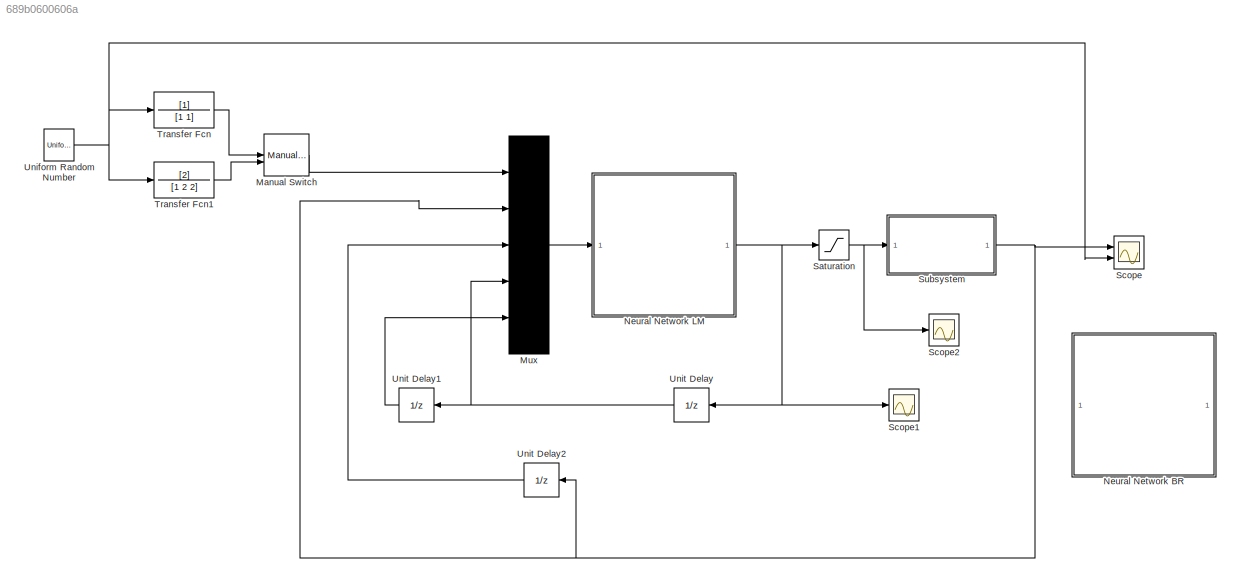
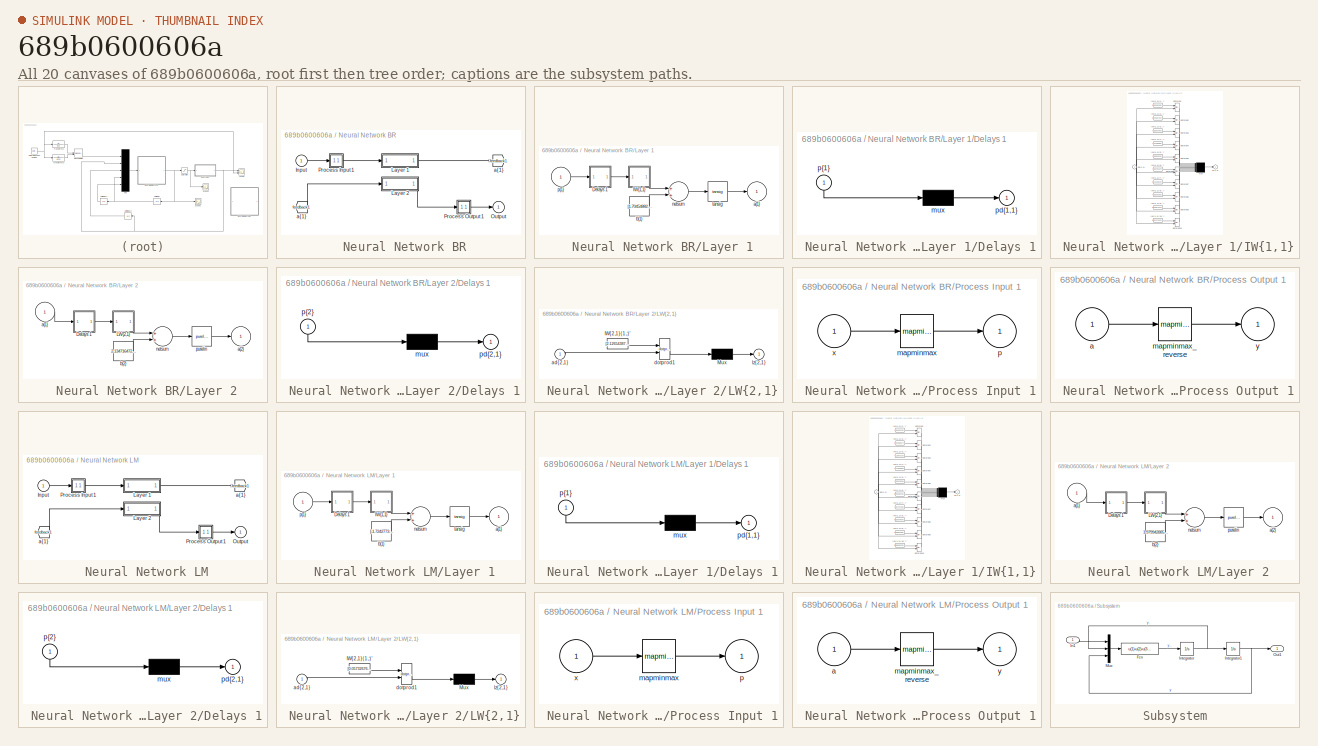
[diagram: thumbnail index - all 20 canvases of the model, root first then tree order]
MODEL slx_689b0600606a
KIND model
CONFIG AbsTol = auto
CONFIG FixedStep = auto
CONFIG MaxStep = auto
CONFIG MinStep = auto
CONFIG RelTol = 1e-3
CONFIG SampleTimeConstraint = Unconstrained
CONFIG Solver = VariableStepAuto
CONFIG SolverMode = Auto
CONFIG SolverName = VariableStepAuto
CONFIG StartTime = 0.0
CONFIG StopTime = 200
BLOCK [SubSystem]  Neural Network BR
  Ports = [1, 1]
  RequestExecContextInheritance = off
  Variant = off
BLOCK [From]  Neural Network BR/ a{1} 
  GotoTag = feedback1
BLOCK [Inport]  Neural Network BR/Input
  IconDisplay = Port number
  PortDimensions = 5
  SampleTime = 0.2
BLOCK [SubSystem]  Neural Network BR/Layer 1
  Ports = [1, 1]
  RequestExecContextInheritance = off
  Variant = off
BLOCK [SubSystem]  Neural Network BR/Layer 1/Delays 1
  Ports = [1, 1]
  RequestExecContextInheritance = off
  Variant = off
BLOCK [Mux]  Neural Network BR/Layer 1/Delays 1/mux
  Inputs = 1
  Ports = [1, 1]
BLOCK [Outport]  Neural Network BR/Layer 1/Delays 1/pd{1,1}
  IconDisplay = Port number
BLOCK [Inport]  Neural Network BR/Layer 1/Delays 1/p{1}
  IconDisplay = Port number
  PortDimensions = 5
  SampleTime = 0.2
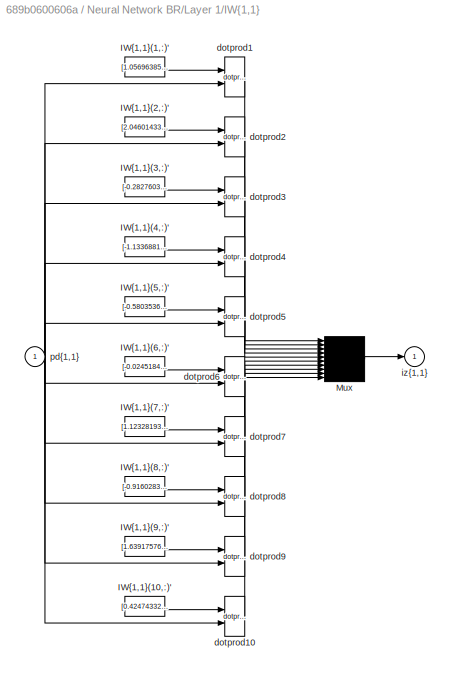
BLOCK [SubSystem]  Neural Network BR/Layer 1/IW{1,1}
  Ports = [1, 1]
  RequestExecContextInheritance = off
  Variant = off
BLOCK [Constant]  Neural Network BR/Layer 1/IW{1,1}/IW{1,1}(1,:)'
  Value = [1.056963858954415;-1.0900926945707046;0.24927751019944705;0.098959723356605342;0.060669770493302001]
BLOCK [Constant]  Neural Network BR/Layer 1/IW{1,1}/IW{1,1}(10,:)'
  Value = [0.42474332894244748;-0.7817028364131875;-0.30183175306917126;-0.0020156599386555599;-0.04446406066967025]
BLOCK [Constant]  Neural Network BR/Layer 1/IW{1,1}/IW{1,1}(2,:)'
  Value = [2.0460143369307637;-2.5356987014266377;1.0447400003619411;-0.16100591945050774;-0.033213769998218144]
BLOCK [Constant]  Neural Network BR/Layer 1/IW{1,1}/IW{1,1}(3,:)'
  Value = [-0.28276033296813868;0.3970490366481611;0.39562273473424403;-0.17442308986767127;-0.059553217371278229]
BLOCK [Constant]  Neural Network BR/Layer 1/IW{1,1}/IW{1,1}(4,:)'
  Value = [-1.1336881780299397;0.85956874940426686;-0.96571778975182532;0.059576964720466336;-0.0056684187506604684]
BLOCK [Constant]  Neural Network BR/Layer 1/IW{1,1}/IW{1,1}(5,:)'
  Value = [-0.58035363580542543;-0.14340273409488374;-0.97495219186498006;0.0064210316041324123;-0.02641483959853862]
BLOCK [Constant]  Neural Network BR/Layer 1/IW{1,1}/IW{1,1}(6,:)'
  Value = [-0.024518425042668188;-0.66988646387706796;0.75956162904179358;0.11752498667584305;0.067498394867176612]
BLOCK [Constant]  Neural Network BR/Layer 1/IW{1,1}/IW{1,1}(7,:)'
  Value = [1.1232819358145447;-3.0285530483114131;1.5370665195340782;-0.099874452682005066;0.01322895500818745]
BLOCK [Constant]  Neural Network BR/Layer 1/IW{1,1}/IW{1,1}(8,:)'
  Value = [-0.91602833625770685;1.0210131008949146;-0.36605489254354684;0.14689116582434847;0.10656023771599385]
BLOCK [Constant]  Neural Network BR/Layer 1/IW{1,1}/IW{1,1}(9,:)'
  Value = [1.6391757663422919;-0.71323444379412915;0.68566147272687827;-0.15178624253823839;-0.055985679889855963]
BLOCK [Mux]  Neural Network BR/Layer 1/IW{1,1}/Mux
  Inputs = 10
  Ports = [10, 1]
BLOCK [Reference]  Neural Network BR/Layer 1/IW{1,1}/dotprod1  REF=neural/Weight Functions/dotprod
  Ports = [2, 1]
  SourceBlock = neural/Weight Functions/dotprod
  SourceType = DOTPROD
BLOCK [Reference]  Neural Network BR/Layer 1/IW{1,1}/dotprod10  REF=neural/Weight Functions/dotprod
  Ports = [2, 1]
  SourceBlock = neural/Weight Functions/dotprod
  SourceType = DOTPROD
BLOCK [Reference]  Neural Network BR/Layer 1/IW{1,1}/dotprod2  REF=neural/Weight Functions/dotprod
  Ports = [2, 1]
  SourceBlock = neural/Weight Functions/dotprod
  SourceType = DOTPROD
BLOCK [Reference]  Neural Network BR/Layer 1/IW{1,1}/dotprod3  REF=neural/Weight Functions/dotprod
  Ports = [2, 1]
  SourceBlock = neural/Weight Functions/dotprod
  SourceType = DOTPROD
BLOCK [Reference]  Neural Network BR/Layer 1/IW{1,1}/dotprod4  REF=neural/Weight Functions/dotprod
  Ports = [2, 1]
  SourceBlock = neural/Weight Functions/dotprod
  SourceType = DOTPROD
BLOCK [Reference]  Neural Network BR/Layer 1/IW{1,1}/dotprod5  REF=neural/Weight Functions/dotprod
  Ports = [2, 1]
  SourceBlock = neural/Weight Functions/dotprod
  SourceType = DOTPROD
BLOCK [Reference]  Neural Network BR/Layer 1/IW{1,1}/dotprod6  REF=neural/Weight Functions/dotprod
  Ports = [2, 1]
  SourceBlock = neural/Weight Functions/dotprod
  SourceType = DOTPROD
BLOCK [Reference]  Neural Network BR/Layer 1/IW{1,1}/dotprod7  REF=neural/Weight Functions/dotprod
  Ports = [2, 1]
  SourceBlock = neural/Weight Functions/dotprod
  SourceType = DOTPROD
BLOCK [Reference]  Neural Network BR/Layer 1/IW{1,1}/dotprod8  REF=neural/Weight Functions/dotprod
  Ports = [2, 1]
  SourceBlock = neural/Weight Functions/dotprod
  SourceType = DOTPROD
BLOCK [Reference]  Neural Network BR/Layer 1/IW{1,1}/dotprod9  REF=neural/Weight Functions/dotprod
  Ports = [2, 1]
  SourceBlock = neural/Weight Functions/dotprod
  SourceType = DOTPROD
BLOCK [Outport]  Neural Network BR/Layer 1/IW{1,1}/iz{1,1}
  IconDisplay = Port number
BLOCK [Inport]  Neural Network BR/Layer 1/IW{1,1}/pd{1,1}
  IconDisplay = Port number
  PortDimensions = 5
  SampleTime = 0.2
BLOCK [Outport]  Neural Network BR/Layer 1/a{1}
  IconDisplay = Port number
  InitialOutput = [0;0;0;0;0;0;0;0;0;0]
BLOCK [Constant]  Neural Network BR/Layer 1/b{1}
  Value = [1.7045488253133885;-0.012578466137472339;0.37025748250943907;0.89800683459673192;2.1867448396153644;0.36750046034840117;-0.46690919082776078;-0.98966717327566744;2.3768809340586188;-0.036632793892404487]
BLOCK [Sum]  Neural Network BR/Layer 1/netsum
  Inputs = 2
  Ports = [2, 1]
BLOCK [Inport]  Neural Network BR/Layer 1/p{1}
  IconDisplay = Port number
  PortDimensions = 5
  SampleTime = 0.2
BLOCK [Reference]  Neural Network BR/Layer 1/tansig  REF=neural/Transfer Functions/tansig
  Ports = [1, 1]
  SourceBlock = neural/Transfer Functions/tansig
  SourceType = TANSIG
BLOCK [SubSystem]  Neural Network BR/Layer 2
  Ports = [1, 1]
  RequestExecContextInheritance = off
  Variant = off
BLOCK [SubSystem]  Neural Network BR/Layer 2/Delays 1
  Ports = [1, 1]
  RequestExecContextInheritance = off
  Variant = off
BLOCK [Mux]  Neural Network BR/Layer 2/Delays 1/mux
  Inputs = 1
  Ports = [1, 1]
BLOCK [Outport]  Neural Network BR/Layer 2/Delays 1/pd{2,1}
  IconDisplay = Port number
BLOCK [Inport]  Neural Network BR/Layer 2/Delays 1/p{2}
  IconDisplay = Port number
  PortDimensions = 10
  SampleTime = 0.2
BLOCK [SubSystem]  Neural Network BR/Layer 2/LW{2,1}
  Ports = [1, 1]
  RequestExecContextInheritance = off
  Variant = off
BLOCK [Constant]  Neural Network BR/Layer 2/LW{2,1}/IW{2,1}(1,:)'
  Value = [2.1265438706580051;3.7009592898865966;-1.3459269555205484;-3.6565779066977497;-4.4205733104627472;1.5027033389764313;5.9477978315276596;-1.9885744465830533;2.3504455734726384;1.6412971123999656]
BLOCK [Mux]  Neural Network BR/Layer 2/LW{2,1}/Mux
  Inputs = 1
  Ports = [1, 1]
BLOCK [Inport]  Neural Network BR/Layer 2/LW{2,1}/ad{2,1}
  IconDisplay = Port number
  PortDimensions = 10
  SampleTime = 0.2
BLOCK [Reference]  Neural Network BR/Layer 2/LW{2,1}/dotprod1  REF=neural/Weight Functions/dotprod
  Ports = [2, 1]
  SourceBlock = neural/Weight Functions/dotprod
  SourceType = DOTPROD
BLOCK [Outport]  Neural Network BR/Layer 2/LW{2,1}/lz{2,1}
  IconDisplay = Port number
BLOCK [Inport]  Neural Network BR/Layer 2/a{1} 
  IconDisplay = Port number
  PortDimensions = 10
  SampleTime = 0.2
BLOCK [Outport]  Neural Network BR/Layer 2/a{2}
  IconDisplay = Port number
  InitialOutput = 0
BLOCK [Constant]  Neural Network BR/Layer 2/b{2}
  Value = 2.1347164720292917
BLOCK [Sum]  Neural Network BR/Layer 2/netsum
  Inputs = 2
  Ports = [2, 1]
BLOCK [Reference]  Neural Network BR/Layer 2/purelin  REF=neural/Transfer Functions/purelin
  Ports = [1, 1]
  SourceBlock = neural/Transfer Functions/purelin
  SourceType = PURELIN
BLOCK [Outport]  Neural Network BR/Output
  IconDisplay = Port number
  InitialOutput = 0
BLOCK [SubSystem]  Neural Network BR/Process Input 1
  Ports = [1, 1]
  RequestExecContextInheritance = off
  Variant = off
BLOCK [Reference]  Neural Network BR/Process Input 1/mapminmax  REF=neural/Processing Functions/mapminmax
  Ports = [1, 1]
  SourceBlock = neural/Processing Functions/mapminmax
  SourceType = MAPMINMAX Preprocess
BLOCK [Outport]  Neural Network BR/Process Input 1/p
  IconDisplay = Port number
  PortDimensions = 5
  SampleTime = 0.2
BLOCK [Inport]  Neural Network BR/Process Input 1/x
  IconDisplay = Port number
  PortDimensions = 5
  SampleTime = 0.2
BLOCK [SubSystem]  Neural Network BR/Process Output 1
  Ports = [1, 1]
  RequestExecContextInheritance = off
  Variant = off
BLOCK [Inport]  Neural Network BR/Process Output 1/a
  IconDisplay = Port number
  PortDimensions = 1
  SampleTime = 0.2
BLOCK [Reference]  Neural Network BR/Process Output 1/mapminmax_reverse  REF=neural/Processing Functions/mapminmax_reverse
  Ports = [1, 1]
  SourceBlock = neural/Processing Functions/mapminmax_reverse
  SourceType = MAPMINMAX Reverse Process
BLOCK [Outport]  Neural Network BR/Process Output 1/y
  IconDisplay = Port number
  PortDimensions = 1
  SampleTime = 0.2
BLOCK [Goto]  Neural Network BR/a{1}
  GotoTag = feedback1
BLOCK [SubSystem]  Neural Network LM
  Ports = [1, 1]
  RequestExecContextInheritance = off
  Variant = off
BLOCK [From]  Neural Network LM/ a{1} 
  GotoTag = feedback1
BLOCK [Inport]  Neural Network LM/Input
  IconDisplay = Port number
  PortDimensions = 5
  SampleTime = 0.2
BLOCK [SubSystem]  Neural Network LM/Layer 1
  Ports = [1, 1]
  RequestExecContextInheritance = off
  Variant = off
BLOCK [SubSystem]  Neural Network LM/Layer 1/Delays 1
  Ports = [1, 1]
  RequestExecContextInheritance = off
  Variant = off
BLOCK [Mux]  Neural Network LM/Layer 1/Delays 1/mux
  Inputs = 1
  Ports = [1, 1]
BLOCK [Outport]  Neural Network LM/Layer 1/Delays 1/pd{1,1}
  IconDisplay = Port number
BLOCK [Inport]  Neural Network LM/Layer 1/Delays 1/p{1}
  IconDisplay = Port number
  PortDimensions = 5
  SampleTime = 0.2
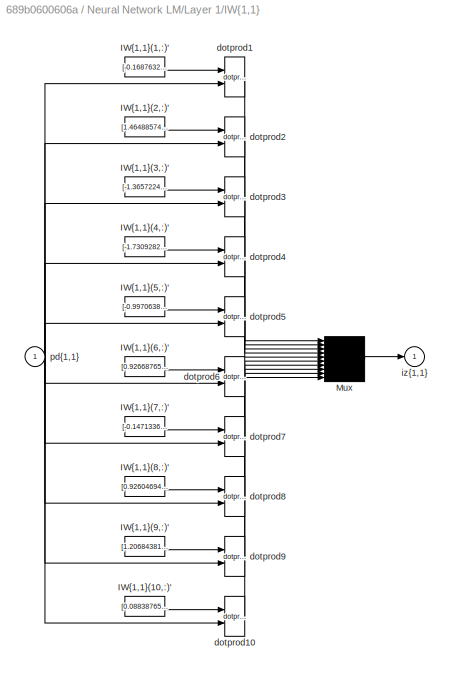
BLOCK [SubSystem]  Neural Network LM/Layer 1/IW{1,1}
  Ports = [1, 1]
  RequestExecContextInheritance = off
  Variant = off
BLOCK [Constant]  Neural Network LM/Layer 1/IW{1,1}/IW{1,1}(1,:)'
  Value = [-0.16876329825811845;-2.1066320802929721;0.76282620320520456;1.3440833319178789;-1.0713310439270929]
BLOCK [Constant]  Neural Network LM/Layer 1/IW{1,1}/IW{1,1}(10,:)'
  Value = [0.088387657274529061;-0.19881329711021387;-0.94431130025925902;0.0047264367556099883;0.63190148272907753]
BLOCK [Constant]  Neural Network LM/Layer 1/IW{1,1}/IW{1,1}(2,:)'
  Value = [1.4648857494262071;-3.4610504649940745;1.7901936105488077;-0.15491806827842539;-0.0021151620640995341]
BLOCK [Constant]  Neural Network LM/Layer 1/IW{1,1}/IW{1,1}(3,:)'
  Value = [-1.3657224552055787;0.80688471402681139;-1.1382619127288134;0.082185478294469691;0.0067311801381174643]
BLOCK [Constant]  Neural Network LM/Layer 1/IW{1,1}/IW{1,1}(4,:)'
  Value = [-1.7309282076627388;2.4581267912494709;-1.2728291835101484;0.091121337007039602;-0.011287021407722793]
BLOCK [Constant]  Neural Network LM/Layer 1/IW{1,1}/IW{1,1}(5,:)'
  Value = [-0.99706386615914622;1.0998584069326154;-0.5503400136437423;-0.13938545582461678;0.015826622187323079]
BLOCK [Constant]  Neural Network LM/Layer 1/IW{1,1}/IW{1,1}(6,:)'
  Value = [0.92668765938641362;-1.4516495032763881;0.030779208736348387;0.092870861472902341;-0.024781990519559233]
BLOCK [Constant]  Neural Network LM/Layer 1/IW{1,1}/IW{1,1}(7,:)'
  Value = [-0.1471336843808155;1.8686114703312633;-0.33963995218011439;0.12650200396603051;0.013439767515916721]
BLOCK [Constant]  Neural Network LM/Layer 1/IW{1,1}/IW{1,1}(8,:)'
  Value = [0.92604694413803668;0.54483653298121437;1.1645858737554569;-0.04621334007481584;-0.022231823992957683]
BLOCK [Constant]  Neural Network LM/Layer 1/IW{1,1}/IW{1,1}(9,:)'
  Value = [1.2068438139796636;0.98539130961691945;1.2704892335215878;-0.4654771766340528;-0.80719686076170449]
BLOCK [Mux]  Neural Network LM/Layer 1/IW{1,1}/Mux
  Inputs = 10
  Ports = [10, 1]
BLOCK [Reference]  Neural Network LM/Layer 1/IW{1,1}/dotprod1  REF=neural/Weight Functions/dotprod
  Ports = [2, 1]
  SourceBlock = neural/Weight Functions/dotprod
  SourceType = DOTPROD
BLOCK [Reference]  Neural Network LM/Layer 1/IW{1,1}/dotprod10  REF=neural/Weight Functions/dotprod
  Ports = [2, 1]
  SourceBlock = neural/Weight Functions/dotprod
  SourceType = DOTPROD
BLOCK [Reference]  Neural Network LM/Layer 1/IW{1,1}/dotprod2  REF=neural/Weight Functions/dotprod
  Ports = [2, 1]
  SourceBlock = neural/Weight Functions/dotprod
  SourceType = DOTPROD
BLOCK [Reference]  Neural Network LM/Layer 1/IW{1,1}/dotprod3  REF=neural/Weight Functions/dotprod
  Ports = [2, 1]
  SourceBlock = neural/Weight Functions/dotprod
  SourceType = DOTPROD
BLOCK [Reference]  Neural Network LM/Layer 1/IW{1,1}/dotprod4  REF=neural/Weight Functions/dotprod
  Ports = [2, 1]
  SourceBlock = neural/Weight Functions/dotprod
  SourceType = DOTPROD
BLOCK [Reference]  Neural Network LM/Layer 1/IW{1,1}/dotprod5  REF=neural/Weight Functions/dotprod
  Ports = [2, 1]
  SourceBlock = neural/Weight Functions/dotprod
  SourceType = DOTPROD
BLOCK [Reference]  Neural Network LM/Layer 1/IW{1,1}/dotprod6  REF=neural/Weight Functions/dotprod
  Ports = [2, 1]
  SourceBlock = neural/Weight Functions/dotprod
  SourceType = DOTPROD
BLOCK [Reference]  Neural Network LM/Layer 1/IW{1,1}/dotprod7  REF=neural/Weight Functions/dotprod
  Ports = [2, 1]
  SourceBlock = neural/Weight Functions/dotprod
  SourceType = DOTPROD
BLOCK [Reference]  Neural Network LM/Layer 1/IW{1,1}/dotprod8  REF=neural/Weight Functions/dotprod
  Ports = [2, 1]
  SourceBlock = neural/Weight Functions/dotprod
  SourceType = DOTPROD
BLOCK [Reference]  Neural Network LM/Layer 1/IW{1,1}/dotprod9  REF=neural/Weight Functions/dotprod
  Ports = [2, 1]
  SourceBlock = neural/Weight Functions/dotprod
  SourceType = DOTPROD
BLOCK [Outport]  Neural Network LM/Layer 1/IW{1,1}/iz{1,1}
  IconDisplay = Port number
BLOCK [Inport]  Neural Network LM/Layer 1/IW{1,1}/pd{1,1}
  IconDisplay = Port number
  PortDimensions = 5
  SampleTime = 0.2
BLOCK [Outport]  Neural Network LM/Layer 1/a{1}
  IconDisplay = Port number
  InitialOutput = [0;0;0;0;0;0;0;0;0;0]
BLOCK [Constant]  Neural Network LM/Layer 1/b{1}
  Value = [-1.7242773230528354;-0.27916447362412417;1.5025619503269712;-0.087083833794172422;-0.91874972241712904;-0.14396519922694817;0.83724644871562937;-3.0805576946821662;4.4586036942700433;-1.546640451809655]
BLOCK [Sum]  Neural Network LM/Layer 1/netsum
  Inputs = 2
  Ports = [2, 1]
BLOCK [Inport]  Neural Network LM/Layer 1/p{1}
  IconDisplay = Port number
  PortDimensions = 5
  SampleTime = 0.2
BLOCK [Reference]  Neural Network LM/Layer 1/tansig  REF=neural/Transfer Functions/tansig
  Ports = [1, 1]
  SourceBlock = neural/Transfer Functions/tansig
  SourceType = TANSIG
BLOCK [SubSystem]  Neural Network LM/Layer 2
  Ports = [1, 1]
  RequestExecContextInheritance = off
  Variant = off
BLOCK [SubSystem]  Neural Network LM/Layer 2/Delays 1
  Ports = [1, 1]
  RequestExecContextInheritance = off
  Variant = off
BLOCK [Mux]  Neural Network LM/Layer 2/Delays 1/mux
  Inputs = 1
  Ports = [1, 1]
BLOCK [Outport]  Neural Network LM/Layer 2/Delays 1/pd{2,1}
  IconDisplay = Port number
BLOCK [Inport]  Neural Network LM/Layer 2/Delays 1/p{2}
  IconDisplay = Port number
  PortDimensions = 10
  SampleTime = 0.2
BLOCK [SubSystem]  Neural Network LM/Layer 2/LW{2,1}
  Ports = [1, 1]
  RequestExecContextInheritance = off
  Variant = off
BLOCK [Constant]  Neural Network LM/Layer 2/LW{2,1}/IW{2,1}(1,:)'
  Value = [0.057326763330341118;3.4207498038037598;-3.2223651203640378;-5.5734047705004803;-0.8953401663093179;1.7720780408218892;-1.3116420911533617;2.1043530497351703;2.8401933777224104;0.43457423931429773]
BLOCK [Mux]  Neural Network LM/Layer 2/LW{2,1}/Mux
  Inputs = 1
  Ports = [1, 1]
BLOCK [Inport]  Neural Network LM/Layer 2/LW{2,1}/ad{2,1}
  IconDisplay = Port number
  PortDimensions = 10
  SampleTime = 0.2
BLOCK [Reference]  Neural Network LM/Layer 2/LW{2,1}/dotprod1  REF=neural/Weight Functions/dotprod
  Ports = [2, 1]
  SourceBlock = neural/Weight Functions/dotprod
  SourceType = DOTPROD
BLOCK [Outport]  Neural Network LM/Layer 2/LW{2,1}/lz{2,1}
  IconDisplay = Port number
BLOCK [Inport]  Neural Network LM/Layer 2/a{1} 
  IconDisplay = Port number
  PortDimensions = 10
  SampleTime = 0.2
BLOCK [Outport]  Neural Network LM/Layer 2/a{2}
  IconDisplay = Port number
  InitialOutput = 0
BLOCK [Constant]  Neural Network LM/Layer 2/b{2}
  Value = 1.9799428859623676
BLOCK [Sum]  Neural Network LM/Layer 2/netsum
  Inputs = 2
  Ports = [2, 1]
BLOCK [Reference]  Neural Network LM/Layer 2/purelin  REF=neural/Transfer Functions/purelin
  Ports = [1, 1]
  SourceBlock = neural/Transfer Functions/purelin
  SourceType = PURELIN
BLOCK [Outport]  Neural Network LM/Output
  IconDisplay = Port number
  InitialOutput = 0
BLOCK [SubSystem]  Neural Network LM/Process Input 1
  Ports = [1, 1]
  RequestExecContextInheritance = off
  Variant = off
BLOCK [Reference]  Neural Network LM/Process Input 1/mapminmax  REF=neural/Processing Functions/mapminmax
  Ports = [1, 1]
  SourceBlock = neural/Processing Functions/mapminmax
  SourceType = MAPMINMAX Preprocess
BLOCK [Outport]  Neural Network LM/Process Input 1/p
  IconDisplay = Port number
  PortDimensions = 5
  SampleTime = 0.2
BLOCK [Inport]  Neural Network LM/Process Input 1/x
  IconDisplay = Port number
  PortDimensions = 5
  SampleTime = 0.2
BLOCK [SubSystem]  Neural Network LM/Process Output 1
  Ports = [1, 1]
  RequestExecContextInheritance = off
  Variant = off
BLOCK [Inport]  Neural Network LM/Process Output 1/a
  IconDisplay = Port number
  PortDimensions = 1
  SampleTime = 0.2
BLOCK [Reference]  Neural Network LM/Process Output 1/mapminmax_reverse  REF=neural/Processing Functions/mapminmax_reverse
  Ports = [1, 1]
  SourceBlock = neural/Processing Functions/mapminmax_reverse
  SourceType = MAPMINMAX Reverse Process
BLOCK [Outport]  Neural Network LM/Process Output 1/y
  IconDisplay = Port number
  PortDimensions = 1
  SampleTime = 0.2
BLOCK [Goto]  Neural Network LM/a{1}
  GotoTag = feedback1
BLOCK [ManualSwitch] Manual Switch
  CurrentSetting = 0
BLOCK [Mux] Mux
  DisplayOption = bar
  Inputs = 5
  Ports = [5, 1]
BLOCK [Saturate] Saturation
  InputPortMap = u0
  LowerLimit = 0
  Ports = [1, 1]
  UpperLimit = 10
BLOCK [Scope] Scope
  NumInputPorts = 2
  Ports = [2]
  ScopeSpecificationString = Simulink.scopes.TimeScopeBlockCfg('CurrentConfiguration', extmgr.ConfigurationSet(extmgr.Configuration('Core','General UI',true),extmgr.Configuration('Core','Source UI',true),extmgr.Configuration('Sources','WiredSimulink',true),extmgr.Configuration('Visuals','Time Domain',true,'SerializedDisplays',{struct('MinYLimReal','-0.28314','MaxYLimReal','2.133','YLabelReal','','MinYLimMag','0.00000','MaxYLi...<+1398ch>
BLOCK [Scope] Scope1
  Ports = [1]
  ScopeSpecificationString = C++SS(StrPVP('SaveName','ScopeData1'))
BLOCK [Scope] Scope2
  Ports = [1]
  ScopeSpecificationString = C++SS(StrPVP('SaveName','ScopeData2'))
BLOCK [SubSystem] Subsystem
  Ports = [1, 1]
  RequestExecContextInheritance = off
  Variant = off
BLOCK [Fcn] Subsystem/Fcn
  Expr = u(1)-u(2)-u(3)^3
BLOCK [Inport] Subsystem/In1
  IconDisplay = Port number
BLOCK [Integrator] Subsystem/Integrator
  Ports = [1, 1]
BLOCK [Integrator] Subsystem/Integrator1
  Ports = [1, 1]
BLOCK [Mux] Subsystem/Mux
  DisplayOption = bar
  Inputs = 3
  Ports = [3, 1]
BLOCK [Outport] Subsystem/Out1
  IconDisplay = Port number
BLOCK [TransferFcn] Transfer Fcn
  Denominator = [1 1]
BLOCK [TransferFcn] Transfer Fcn1
  Denominator = [1 2 2]
  Numerator = [2]
BLOCK [UniformRandomNumber] Uniform Random Number
  Maximum = 2
  Minimum = 0
  SampleTime = 10
BLOCK [UnitDelay] Unit Delay
  InputProcessing = Elements as channels (sample based)
  SampleTime = 0.2
BLOCK [UnitDelay] Unit Delay1
  InputProcessing = Elements as channels (sample based)
  SampleTime = 0.2
BLOCK [UnitDelay] Unit Delay2
  InputProcessing = Elements as channels (sample based)
  SampleTime = 0.2
LINE  Neural Network BR/ a{1} :1 ->  Neural Network BR/Layer 2:1
LINE  Neural Network BR/Input:1 ->  Neural Network BR/Process Input 1:1
LINE  Neural Network BR/Layer 1/Delays 1/mux:1 ->  Neural Network BR/Layer 1/Delays 1/pd{1,1}:1
LINE  Neural Network BR/Layer 1/Delays 1/p{1}:1 ->  Neural Network BR/Layer 1/Delays 1/mux:1
LINE  Neural Network BR/Layer 1/Delays 1:1 ->  Neural Network BR/Layer 1/IW{1,1}:1
LINE  Neural Network BR/Layer 1/IW{1,1}/IW{1,1}(1,:)':1 ->  Neural Network BR/Layer 1/IW{1,1}/dotprod1:1
LINE  Neural Network BR/Layer 1/IW{1,1}/IW{1,1}(10,:)':1 ->  Neural Network BR/Layer 1/IW{1,1}/dotprod10:1
LINE  Neural Network BR/Layer 1/IW{1,1}/IW{1,1}(2,:)':1 ->  Neural Network BR/Layer 1/IW{1,1}/dotprod2:1
LINE  Neural Network BR/Layer 1/IW{1,1}/IW{1,1}(3,:)':1 ->  Neural Network BR/Layer 1/IW{1,1}/dotprod3:1
LINE  Neural Network BR/Layer 1/IW{1,1}/IW{1,1}(4,:)':1 ->  Neural Network BR/Layer 1/IW{1,1}/dotprod4:1
LINE  Neural Network BR/Layer 1/IW{1,1}/IW{1,1}(5,:)':1 ->  Neural Network BR/Layer 1/IW{1,1}/dotprod5:1
LINE  Neural Network BR/Layer 1/IW{1,1}/IW{1,1}(6,:)':1 ->  Neural Network BR/Layer 1/IW{1,1}/dotprod6:1
LINE  Neural Network BR/Layer 1/IW{1,1}/IW{1,1}(7,:)':1 ->  Neural Network BR/Layer 1/IW{1,1}/dotprod7:1
LINE  Neural Network BR/Layer 1/IW{1,1}/IW{1,1}(8,:)':1 ->  Neural Network BR/Layer 1/IW{1,1}/dotprod8:1
LINE  Neural Network BR/Layer 1/IW{1,1}/IW{1,1}(9,:)':1 ->  Neural Network BR/Layer 1/IW{1,1}/dotprod9:1
LINE  Neural Network BR/Layer 1/IW{1,1}/Mux:1 ->  Neural Network BR/Layer 1/IW{1,1}/iz{1,1}:1
LINE  Neural Network BR/Layer 1/IW{1,1}/dotprod10:1 ->  Neural Network BR/Layer 1/IW{1,1}/Mux:10
LINE  Neural Network BR/Layer 1/IW{1,1}/dotprod1:1 ->  Neural Network BR/Layer 1/IW{1,1}/Mux:1
LINE  Neural Network BR/Layer 1/IW{1,1}/dotprod2:1 ->  Neural Network BR/Layer 1/IW{1,1}/Mux:2
LINE  Neural Network BR/Layer 1/IW{1,1}/dotprod3:1 ->  Neural Network BR/Layer 1/IW{1,1}/Mux:3
LINE  Neural Network BR/Layer 1/IW{1,1}/dotprod4:1 ->  Neural Network BR/Layer 1/IW{1,1}/Mux:4
LINE  Neural Network BR/Layer 1/IW{1,1}/dotprod5:1 ->  Neural Network BR/Layer 1/IW{1,1}/Mux:5
LINE  Neural Network BR/Layer 1/IW{1,1}/dotprod6:1 ->  Neural Network BR/Layer 1/IW{1,1}/Mux:6
LINE  Neural Network BR/Layer 1/IW{1,1}/dotprod7:1 ->  Neural Network BR/Layer 1/IW{1,1}/Mux:7
LINE  Neural Network BR/Layer 1/IW{1,1}/dotprod8:1 ->  Neural Network BR/Layer 1/IW{1,1}/Mux:8
LINE  Neural Network BR/Layer 1/IW{1,1}/dotprod9:1 ->  Neural Network BR/Layer 1/IW{1,1}/Mux:9
NET  Neural Network BR/Layer 1/IW{1,1}/pd{1,1}:1 ->  Neural Network BR/Layer 1/IW{1,1}/dotprod10:2,  Neural Network BR/Layer 1/IW{1,1}/dotprod1:2,  Neural Network BR/Layer 1/IW{1,1}/dotprod2:2,  Neural Network BR/Layer 1/IW{1,1}/dotprod3:2,  Neural Network BR/Layer 1/IW{1,1}/dotprod4:2,  Neural Network BR/Layer 1/IW{1,1}/dotprod5:2,  Neural Network BR/Layer 1/IW{1,1}/dotprod6:2,  Neural Network BR/Layer 1/IW{1,1}/dotprod7:2,  Neural Network BR/Layer 1/IW{1,1}/dotprod8:2,  Neural Network BR/Layer 1/IW{1,1}/dotprod9:2
LINE  Neural Network BR/Layer 1/IW{1,1}:1 ->  Neural Network BR/Layer 1/netsum:1
LINE  Neural Network BR/Layer 1/b{1}:1 ->  Neural Network BR/Layer 1/netsum:2
LINE  Neural Network BR/Layer 1/netsum:1 ->  Neural Network BR/Layer 1/tansig:1
LINE  Neural Network BR/Layer 1/p{1}:1 ->  Neural Network BR/Layer 1/Delays 1:1
LINE  Neural Network BR/Layer 1/tansig:1 ->  Neural Network BR/Layer 1/a{1}:1
LINE  Neural Network BR/Layer 1:1 ->  Neural Network BR/a{1}:1
LINE  Neural Network BR/Layer 2/Delays 1/mux:1 ->  Neural Network BR/Layer 2/Delays 1/pd{2,1}:1
LINE  Neural Network BR/Layer 2/Delays 1/p{2}:1 ->  Neural Network BR/Layer 2/Delays 1/mux:1
LINE  Neural Network BR/Layer 2/Delays 1:1 ->  Neural Network BR/Layer 2/LW{2,1}:1
LINE  Neural Network BR/Layer 2/LW{2,1}/IW{2,1}(1,:)':1 ->  Neural Network BR/Layer 2/LW{2,1}/dotprod1:1
LINE  Neural Network BR/Layer 2/LW{2,1}/Mux:1 ->  Neural Network BR/Layer 2/LW{2,1}/lz{2,1}:1
LINE  Neural Network BR/Layer 2/LW{2,1}/ad{2,1}:1 ->  Neural Network BR/Layer 2/LW{2,1}/dotprod1:2
LINE  Neural Network BR/Layer 2/LW{2,1}/dotprod1:1 ->  Neural Network BR/Layer 2/LW{2,1}/Mux:1
LINE  Neural Network BR/Layer 2/LW{2,1}:1 ->  Neural Network BR/Layer 2/netsum:1
LINE  Neural Network BR/Layer 2/a{1} :1 ->  Neural Network BR/Layer 2/Delays 1:1
LINE  Neural Network BR/Layer 2/b{2}:1 ->  Neural Network BR/Layer 2/netsum:2
LINE  Neural Network BR/Layer 2/netsum:1 ->  Neural Network BR/Layer 2/purelin:1
LINE  Neural Network BR/Layer 2/purelin:1 ->  Neural Network BR/Layer 2/a{2}:1
LINE  Neural Network BR/Layer 2:1 ->  Neural Network BR/Process Output 1:1
LINE  Neural Network BR/Process Input 1/mapminmax:1 ->  Neural Network BR/Process Input 1/p:1
LINE  Neural Network BR/Process Input 1/x:1 ->  Neural Network BR/Process Input 1/mapminmax:1
LINE  Neural Network BR/Process Input 1:1 ->  Neural Network BR/Layer 1:1
LINE  Neural Network BR/Process Output 1/a:1 ->  Neural Network BR/Process Output 1/mapminmax_reverse:1
LINE  Neural Network BR/Process Output 1/mapminmax_reverse:1 ->  Neural Network BR/Process Output 1/y:1
LINE  Neural Network BR/Process Output 1:1 ->  Neural Network BR/Output:1
LINE  Neural Network LM/ a{1} :1 ->  Neural Network LM/Layer 2:1
LINE  Neural Network LM/Input:1 ->  Neural Network LM/Process Input 1:1
LINE  Neural Network LM/Layer 1/Delays 1/mux:1 ->  Neural Network LM/Layer 1/Delays 1/pd{1,1}:1
LINE  Neural Network LM/Layer 1/Delays 1/p{1}:1 ->  Neural Network LM/Layer 1/Delays 1/mux:1
LINE  Neural Network LM/Layer 1/Delays 1:1 ->  Neural Network LM/Layer 1/IW{1,1}:1
LINE  Neural Network LM/Layer 1/IW{1,1}/IW{1,1}(1,:)':1 ->  Neural Network LM/Layer 1/IW{1,1}/dotprod1:1
LINE  Neural Network LM/Layer 1/IW{1,1}/IW{1,1}(10,:)':1 ->  Neural Network LM/Layer 1/IW{1,1}/dotprod10:1
LINE  Neural Network LM/Layer 1/IW{1,1}/IW{1,1}(2,:)':1 ->  Neural Network LM/Layer 1/IW{1,1}/dotprod2:1
LINE  Neural Network LM/Layer 1/IW{1,1}/IW{1,1}(3,:)':1 ->  Neural Network LM/Layer 1/IW{1,1}/dotprod3:1
LINE  Neural Network LM/Layer 1/IW{1,1}/IW{1,1}(4,:)':1 ->  Neural Network LM/Layer 1/IW{1,1}/dotprod4:1
LINE  Neural Network LM/Layer 1/IW{1,1}/IW{1,1}(5,:)':1 ->  Neural Network LM/Layer 1/IW{1,1}/dotprod5:1
LINE  Neural Network LM/Layer 1/IW{1,1}/IW{1,1}(6,:)':1 ->  Neural Network LM/Layer 1/IW{1,1}/dotprod6:1
LINE  Neural Network LM/Layer 1/IW{1,1}/IW{1,1}(7,:)':1 ->  Neural Network LM/Layer 1/IW{1,1}/dotprod7:1
LINE  Neural Network LM/Layer 1/IW{1,1}/IW{1,1}(8,:)':1 ->  Neural Network LM/Layer 1/IW{1,1}/dotprod8:1
LINE  Neural Network LM/Layer 1/IW{1,1}/IW{1,1}(9,:)':1 ->  Neural Network LM/Layer 1/IW{1,1}/dotprod9:1
LINE  Neural Network LM/Layer 1/IW{1,1}/Mux:1 ->  Neural Network LM/Layer 1/IW{1,1}/iz{1,1}:1
LINE  Neural Network LM/Layer 1/IW{1,1}/dotprod10:1 ->  Neural Network LM/Layer 1/IW{1,1}/Mux:10
LINE  Neural Network LM/Layer 1/IW{1,1}/dotprod1:1 ->  Neural Network LM/Layer 1/IW{1,1}/Mux:1
LINE  Neural Network LM/Layer 1/IW{1,1}/dotprod2:1 ->  Neural Network LM/Layer 1/IW{1,1}/Mux:2
LINE  Neural Network LM/Layer 1/IW{1,1}/dotprod3:1 ->  Neural Network LM/Layer 1/IW{1,1}/Mux:3
LINE  Neural Network LM/Layer 1/IW{1,1}/dotprod4:1 ->  Neural Network LM/Layer 1/IW{1,1}/Mux:4
LINE  Neural Network LM/Layer 1/IW{1,1}/dotprod5:1 ->  Neural Network LM/Layer 1/IW{1,1}/Mux:5
LINE  Neural Network LM/Layer 1/IW{1,1}/dotprod6:1 ->  Neural Network LM/Layer 1/IW{1,1}/Mux:6
LINE  Neural Network LM/Layer 1/IW{1,1}/dotprod7:1 ->  Neural Network LM/Layer 1/IW{1,1}/Mux:7
LINE  Neural Network LM/Layer 1/IW{1,1}/dotprod8:1 ->  Neural Network LM/Layer 1/IW{1,1}/Mux:8
LINE  Neural Network LM/Layer 1/IW{1,1}/dotprod9:1 ->  Neural Network LM/Layer 1/IW{1,1}/Mux:9
NET  Neural Network LM/Layer 1/IW{1,1}/pd{1,1}:1 ->  Neural Network LM/Layer 1/IW{1,1}/dotprod10:2,  Neural Network LM/Layer 1/IW{1,1}/dotprod1:2,  Neural Network LM/Layer 1/IW{1,1}/dotprod2:2,  Neural Network LM/Layer 1/IW{1,1}/dotprod3:2,  Neural Network LM/Layer 1/IW{1,1}/dotprod4:2,  Neural Network LM/Layer 1/IW{1,1}/dotprod5:2,  Neural Network LM/Layer 1/IW{1,1}/dotprod6:2,  Neural Network LM/Layer 1/IW{1,1}/dotprod7:2,  Neural Network LM/Layer 1/IW{1,1}/dotprod8:2,  Neural Network LM/Layer 1/IW{1,1}/dotprod9:2
LINE  Neural Network LM/Layer 1/IW{1,1}:1 ->  Neural Network LM/Layer 1/netsum:1
LINE  Neural Network LM/Layer 1/b{1}:1 ->  Neural Network LM/Layer 1/netsum:2
LINE  Neural Network LM/Layer 1/netsum:1 ->  Neural Network LM/Layer 1/tansig:1
LINE  Neural Network LM/Layer 1/p{1}:1 ->  Neural Network LM/Layer 1/Delays 1:1
LINE  Neural Network LM/Layer 1/tansig:1 ->  Neural Network LM/Layer 1/a{1}:1
LINE  Neural Network LM/Layer 1:1 ->  Neural Network LM/a{1}:1
LINE  Neural Network LM/Layer 2/Delays 1/mux:1 ->  Neural Network LM/Layer 2/Delays 1/pd{2,1}:1
LINE  Neural Network LM/Layer 2/Delays 1/p{2}:1 ->  Neural Network LM/Layer 2/Delays 1/mux:1
LINE  Neural Network LM/Layer 2/Delays 1:1 ->  Neural Network LM/Layer 2/LW{2,1}:1
LINE  Neural Network LM/Layer 2/LW{2,1}/IW{2,1}(1,:)':1 ->  Neural Network LM/Layer 2/LW{2,1}/dotprod1:1
LINE  Neural Network LM/Layer 2/LW{2,1}/Mux:1 ->  Neural Network LM/Layer 2/LW{2,1}/lz{2,1}:1
LINE  Neural Network LM/Layer 2/LW{2,1}/ad{2,1}:1 ->  Neural Network LM/Layer 2/LW{2,1}/dotprod1:2
LINE  Neural Network LM/Layer 2/LW{2,1}/dotprod1:1 ->  Neural Network LM/Layer 2/LW{2,1}/Mux:1
LINE  Neural Network LM/Layer 2/LW{2,1}:1 ->  Neural Network LM/Layer 2/netsum:1
LINE  Neural Network LM/Layer 2/a{1} :1 ->  Neural Network LM/Layer 2/Delays 1:1
LINE  Neural Network LM/Layer 2/b{2}:1 ->  Neural Network LM/Layer 2/netsum:2
LINE  Neural Network LM/Layer 2/netsum:1 ->  Neural Network LM/Layer 2/purelin:1
LINE  Neural Network LM/Layer 2/purelin:1 ->  Neural Network LM/Layer 2/a{2}:1
LINE  Neural Network LM/Layer 2:1 ->  Neural Network LM/Process Output 1:1
LINE  Neural Network LM/Process Input 1/mapminmax:1 ->  Neural Network LM/Process Input 1/p:1
LINE  Neural Network LM/Process Input 1/x:1 ->  Neural Network LM/Process Input 1/mapminmax:1
LINE  Neural Network LM/Process Input 1:1 ->  Neural Network LM/Layer 1:1
LINE  Neural Network LM/Process Output 1/a:1 ->  Neural Network LM/Process Output 1/mapminmax_reverse:1
LINE  Neural Network LM/Process Output 1/mapminmax_reverse:1 ->  Neural Network LM/Process Output 1/y:1
LINE  Neural Network LM/Process Output 1:1 ->  Neural Network LM/Output:1
NET  Neural Network LM:1 -> Saturation:1, Scope1:1, Unit Delay:1
LINE Manual Switch:1 -> Mux:1
LINE Mux:1 ->  Neural Network LM:1
NET Saturation:1 -> Scope2:1, Subsystem:1
LINE Subsystem/Fcn:1 -> Subsystem/Integrator:1
LINE Subsystem/In1:1 -> Subsystem/Mux:1
NET Subsystem/Integrator1:1 -> Subsystem/Mux:3, Subsystem/Out1:1
NET Subsystem/Integrator:1 -> Subsystem/Integrator1:1, Subsystem/Mux:2
LINE Subsystem/Mux:1 -> Subsystem/Fcn:1
NET Subsystem:1 -> Mux:2, Scope:1, Unit Delay2:1
LINE Transfer Fcn1:1 -> Manual Switch:2
LINE Transfer Fcn:1 -> Manual Switch:1
NET Uniform Random Number:1 -> Scope:2, Transfer Fcn1:1, Transfer Fcn:1
LINE Unit Delay1:1 -> Mux:5
LINE Unit Delay2:1 -> Mux:3
NET Unit Delay:1 -> Mux:4, Unit Delay1:1
note: NET lines group one-source signal fan-out (src -> all destinations, sorted); 1:1 wires keep LINE
